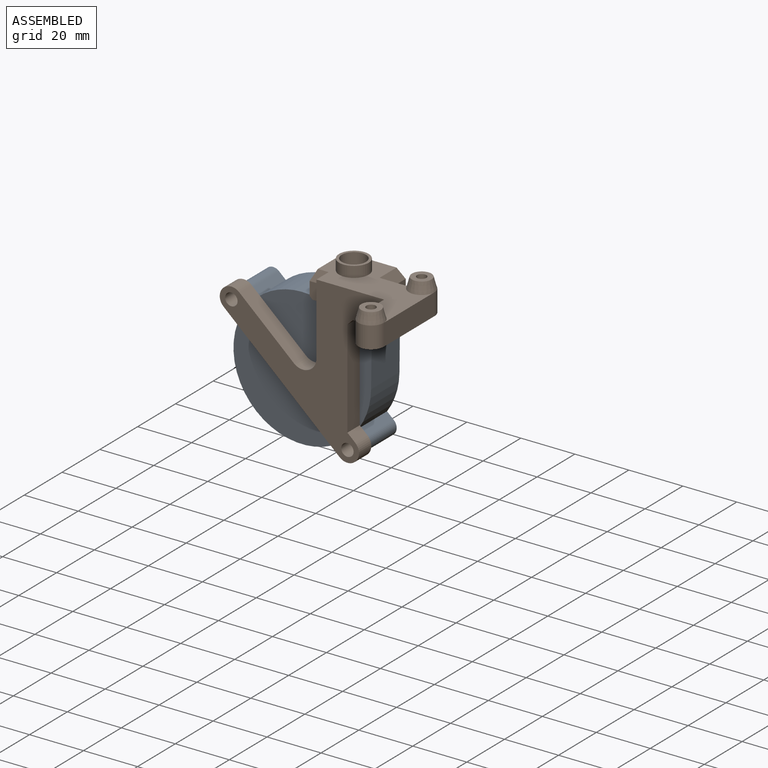
[diagram: assembled view]
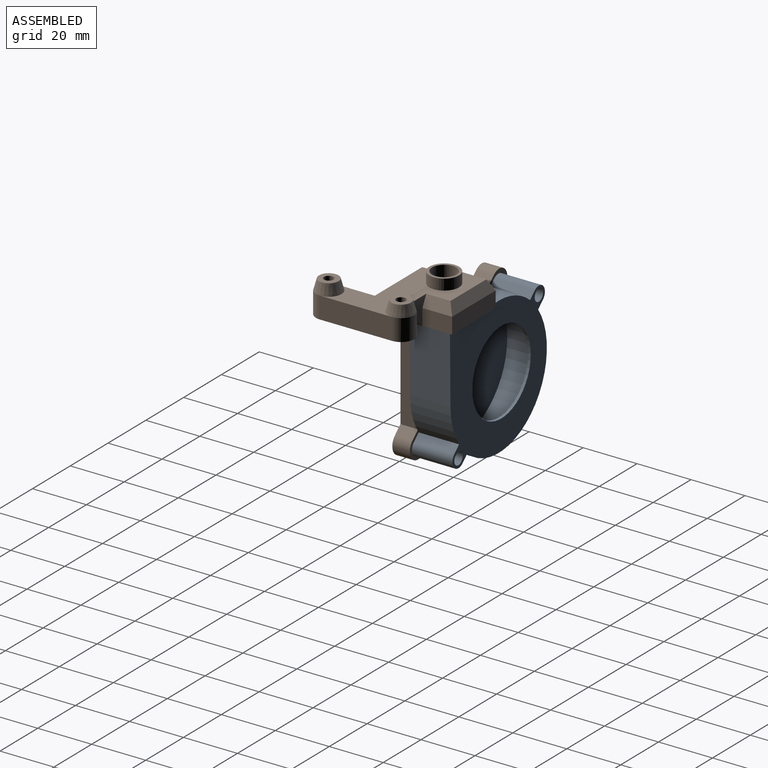
[diagram: assembled view, second angle]
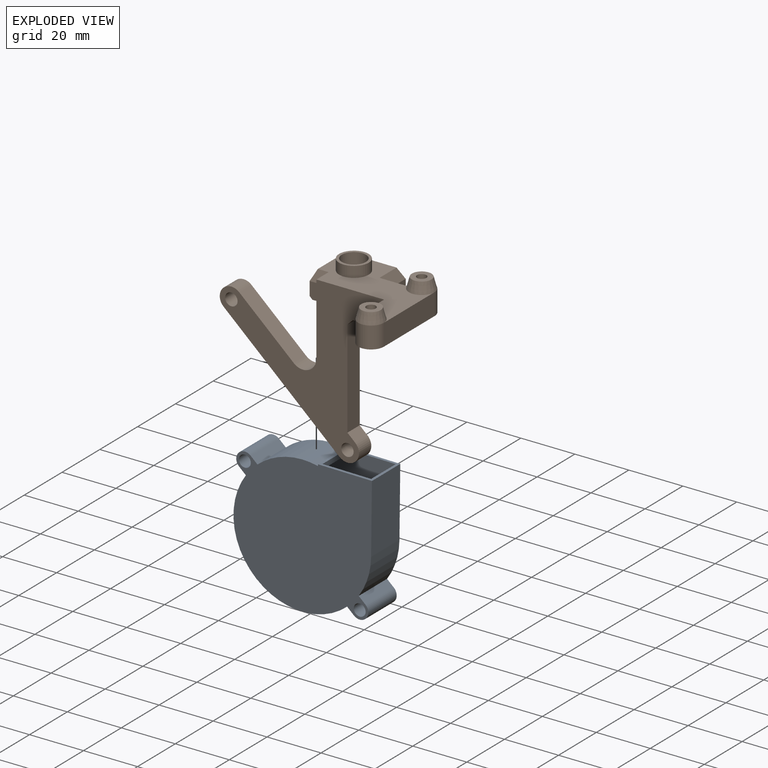
[diagram: exploded view]
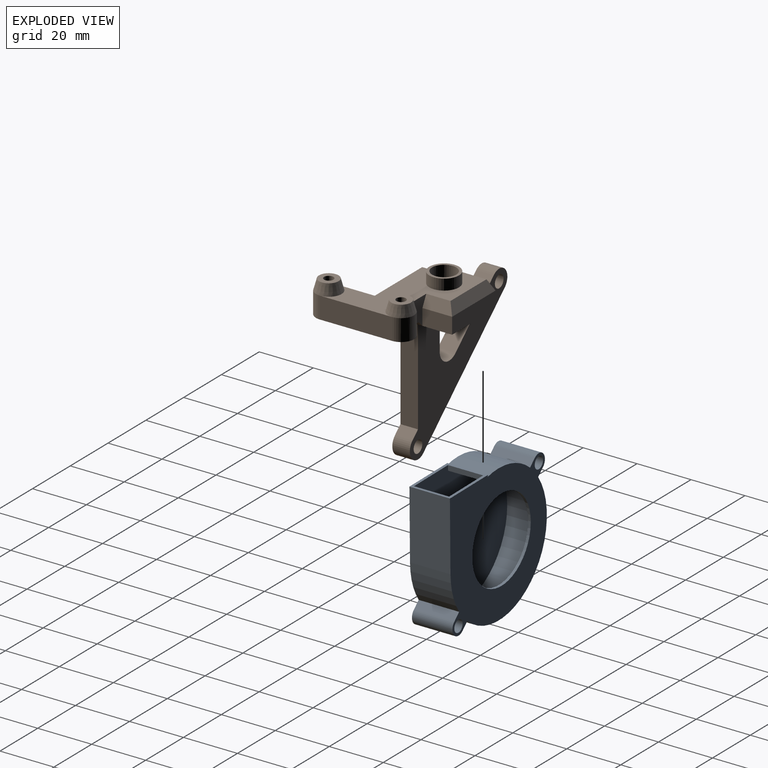
[diagram: exploded view, second angle]
ASSEMBLY  parts=2 mates=3
PART A: 23 faces, bbox 51x51x15 mm
  f0: plane 15x0.6mm, normal (-1,0,0), area 9mm2, adj f1,f12,f14,f15
  f1: plane 20x15mm, normal (0,-1,0), area 66mm2, adj f0,f2,f14,f15,f18,f19,f21,f22
  f2: plane 25.5x15mm, normal (1,0,0), area 382.5mm2, adj f1,f3,f14,f15
  f3: cylinder r=25.5mm len=15mm, axis (0,0,-1), area 228.7mm2, adj f2,f4,f14,f15
  f4: plane 15x2.54mm, normal (0.66,-0.75,0), area 50.9mm2, adj f3,f5,f14,f15
  f5: cylinder r=3.2mm len=15mm, axis (0,0,-1), area 150.8mm2, adj f4,f6,f14,f15
  f6: plane 15x2.54mm, normal (-0.66,0.75,0), area 50.9mm2, adj f5,f7,f14,f15
  f7: cylinder r=25.5mm len=42.34mm, axis (0,0,-1), area 1105.4mm2, adj f6,f8,f14,f15
  f8: plane 15x2.54mm, normal (-0.66,0.75,0), area 50.9mm2, adj f7,f9,f14,f15
  f9: cylinder r=3.2mm len=15mm, axis (0,0,-1), area 150.8mm2, adj f8,f10,f14,f15
  f10: plane 15x2.54mm, normal (0.66,-0.75,0), area 50.9mm2, adj f9,f12,f14,f15
  f11: cylinder r=2.2mm len=15mm, axis (0,0,-1), area 207.3mm2, adj f14,f15
  f12: cylinder r=25.5mm len=22.34mm, axis (0,0,-1), area 359mm2, adj f0,f10,f14,f15
  f13: cylinder r=2.2mm len=15mm, axis (0,0,-1), area 207.3mm2, adj f14,f15
  f14: plane 51x51mm, normal (0,0,1), area 1470mm2, adj f0,f1,f2,f3,f4,f5,f6,f7
  f15: plane 51x51mm, normal (0,0,-1), area 2224.8mm2, adj f0,f1,f2,f3,f4,f5,f6,f7
  f16: cylinder r=15.5mm len=31mm, axis (0,0,-1), area 97.4mm2, adj f14,f18
  f17: cylinder r=24.5mm len=49mm, axis (0,0,-1), area 1599.4mm2, adj f18,f19,f20,f22
  f18: plane 50x49mm, normal (0,0,-1), area 1275.9mm2, adj f1,f16,f17,f20,f21,f22
  f19: plane 50x49mm, normal (0,0,1), area 2030.7mm2, adj f1,f17,f20,f21,f22
  f20: plane 13x0.02mm, normal (0,-1,0), area 0.3mm2, adj f17,f18,f19,f21
  f21: plane 24.5x13mm, normal (-1,0,0), area 318.5mm2, adj f1,f18,f19,f20
  f22: plane 13x1.88mm, normal (1,0,0), area 24.4mm2, adj f1,f17,f18,f19
PART B: 56 faces, bbox 71x42.1x62.9 mm
  f0: cone r=4.5mm half-angle=63.4deg, axis (0,0,-1), area 23.2mm2, adj f14,f25,f52,f53
  f1: cone r=4.5mm half-angle=63.4deg, axis (0,0,-1), area 3.5mm2, adj f14,f53,f54
  f2: plane 36.3x15.6mm, normal (0,0,-1), area 318.5mm2, adj f4,f5,f6,f8,f10,f11,f12,f13
  f3: plane 1.1x0.13mm, normal (0,0,-1), area 0mm2, adj f6,f7,f8
  f4: cylinder r=4.75mm len=9.5mm, axis (0,0,1), area 119.4mm2, adj f2,f5,f12,f44
  f5: plane 26.8x8mm, normal (1,0,0), area 214.4mm2, adj f2,f4,f6,f15
  f6: cylinder r=4.75mm len=9.5mm, axis (0,0,1), area 123.8mm2, adj f2,f3,f5,f7,f8,f43
  f7: plane 4x1.1mm, normal (-1,0,0), area 4.4mm2, adj f3,f6,f8,f15
  f8: plane 10.23x10mm, normal (0,1,0), area 71.3mm2, adj f2,f3,f6,f7,f15,f22,f39,f47
  f9: plane 26.52x6.5mm, normal (-1,0,0), area 157.4mm2, adj f10,f15,f20,f24,f25,f35,f45
  f10: plane 62.9x58.3mm, normal (0,-1,0), area 1185.6mm2, adj f2,f9,f12,f15,f27,f28,f29,f30
  f11: cylinder r=1.75mm len=12mm, axis (0,0,1), area 131.9mm2, adj f2,f19
  f12: plane 13.7x8mm, normal (-1,0,0), area 109.6mm2, adj f2,f4,f10,f15
  f13: cylinder r=1.75mm len=12mm, axis (0,0,1), area 131.9mm2, adj f2,f18
  f14: cylinder r=4.5mm len=9mm, axis (0,0,1), area 176.2mm2, adj f0,f1,f17,f52,f53,f54,f55
  f15: plane 38.6x34.7mm, normal (0,0,1), area 582.9mm2, adj f5,f7,f8,f9,f10,f12,f16,f20
  f16: cylinder r=5.5mm len=11mm, axis (0,0,-1), area 138.2mm2, adj f15,f17
  f17: plane 11x11mm, normal (0,0,1), area 31.4mm2, adj f14,f16
  f18: plane 7.3x7.3mm, normal (0,0,1), area 32.2mm2, adj f13,f44
  f19: plane 7.3x7.3mm, normal (0,0,1), area 32.2mm2, adj f11,f43
  f20: plane 6x4mm, normal (0,-0.94,0.35), area 21.4mm2, adj f9,f15,f24,f41
  f21: plane 15.1x1.9mm, normal (1,0,0), area 28.7mm2, adj f25,f27,f38,f52
  f22: plane 11x6mm, normal (1,0,0), area 66mm2, adj f8,f27,f37,f39
  f23: plane 18x5mm, normal (-1,0,0), area 90mm2, adj f24,f37,f41,f42
  f24: plane 8x6mm, normal (0,-1,0), area 37.5mm2, adj f9,f20,f23,f27,f42,f45
  f25: plane 55.8x51.6mm, normal (0,1,0), area 1051.3mm2, adj f0,f9,f21,f26,f27,f28,f29,f30
  f26: plane 15.1x1.9mm, normal (-1,0,0), area 28.7mm2, adj f25,f27,f38,f53
  f27: plane 30.1x23mm, normal (0,0,-1), area 137.9mm2, adj f10,f21,f22,f24,f25,f26,f37,f38
  f28: plane 43x38.92mm, normal (-0.67,0,-0.74), area 377mm2, adj f10,f25,f29,f34
  f29: cylinder r=4.3mm len=7.49mm, axis (0,-1,0), area 87.8mm2, adj f10,f25,f28,f30
  f30: plane 6.5x2.89mm, normal (0.67,0,0.74), area 25.3mm2, adj f10,f25,f29,f31
  f31: plane 36.2x6.5mm, normal (1,0,0), area 235.3mm2, adj f10,f25,f30,f46
  f32: cylinder r=2.3mm len=6.5mm, axis (0,-1,0), area 93.9mm2, adj f10,f25
  f33: cylinder r=2.3mm len=6.5mm, axis (0,-1,0), area 93.9mm2, adj f10,f25
  f34: cylinder r=4.3mm len=7.49mm, axis (0,-1,0), area 87.8mm2, adj f10,f25,f28,f36
  f35: cylinder r=5mm len=8.36mm, axis (0,-1,0), area 75mm2, adj f9,f10,f25,f36
  f36: plane 20.26x18.34mm, normal (0.67,0,0.74), area 177.6mm2, adj f10,f25,f34,f35
  f37: plane 23x6mm, normal (0,1,0), area 137.5mm2, adj f22,f23,f27,f40,f42
  f38: plane 20.2x1.9mm, normal (0,-1,0), area 38.4mm2, adj f21,f26,f27,f54
  f39: plane 11x4mm, normal (0.89,0,0.45), area 44.7mm2, adj f8,f15,f22,f40
  f40: plane 23x4mm, normal (0,0.89,0.45), area 93.9mm2, adj f15,f37,f39,f41
  f41: plane 18x4mm, normal (-0.89,0,0.45), area 72.7mm2, adj f15,f20,f23,f40
  f42: plane 18x1mm, normal (-0.71,0,-0.71), area 25.5mm2, adj f23,f24,f27,f37
  f43: cone r=3.65mm half-angle=15.4deg, axis (0,0,-1), area 109.5mm2, adj f6,f15,f19
  f44: cone r=3.65mm half-angle=15.4deg, axis (0,0,-1), area 109.5mm2, adj f4,f15,f18
  f45: plane 2x2mm, normal (-0.71,0,-0.71), area 4.2mm2, adj f9,f24,f25,f27
  f46: plane 6.5x2mm, normal (0.71,0,-0.71), area 18.4mm2, adj f10,f25,f27,f31
  f47: plane 3.5x2mm, normal (0.71,0,-0.71), area 9.9mm2, adj f2,f8,f27,f48
  f48: plane 2x2mm, normal (0.58,0.58,-0.58), area 3.5mm2, adj f27,f47,f50
  f49: plane 4.5x2mm, normal (0.71,0,-0.71), area 12.7mm2, adj f2,f10,f27,f51
  f50: plane 4.1x2mm, normal (0,0.71,-0.71), area 11.6mm2, adj f2,f27,f48,f51
  f51: plane 4x4mm, normal (0.58,0.58,-0.58), area 10.4mm2, adj f2,f27,f49,f50
  f52: plane 15.71x6.71mm, normal (0.71,0,-0.71), area 96.7mm2, adj f0,f14,f21,f25,f54,f55
  f53: plane 15.71x6.71mm, normal (-0.71,0,-0.71), area 96.7mm2, adj f0,f1,f14,f25,f26,f54
  f54: plane 20.44x6.34mm, normal (0,-0.71,-0.71), area 113.9mm2, adj f1,f14,f38,f52,f53,f55
  f55: cone r=4.5mm half-angle=63.4deg, axis (0,0,-1), area 3.5mm2, adj f14,f52,f54
PLACE A rot(axis=(-1,0.01,0.01),90deg) t=(99.07,-2.88,-73.61)mm
PLACE B rot(axis=(-1,0,0),0deg) t=(-83.99,-205.4,-38.86)mm
MATE parallel A.f6 <-> B.f28  axis (-0.67,0,-0.74) through (116.93,4.62,-94.1)mm
MATE planar A.f15 <-> B.f25  axis (0,-1,0) through (100.32,-2.88,-72.39)mm
MATE cylindrical A.f5 <-> B.f29  axis (0,-1,0) through (120.34,4.62,-92.86)mm
